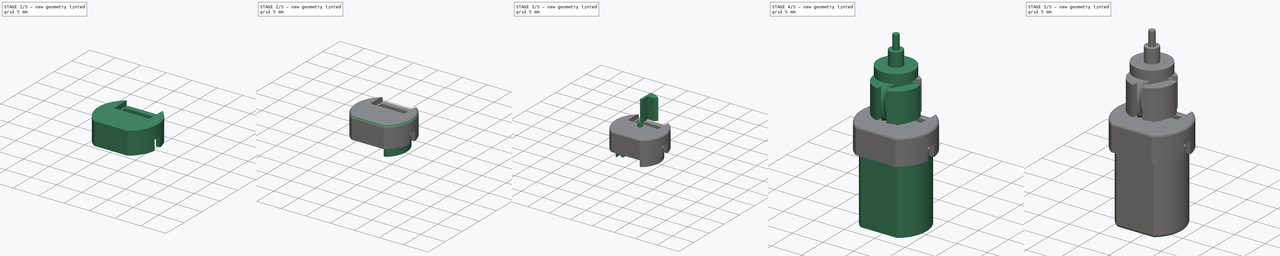
[diagram: build sequence overview — one tinted view per stage of 5, left to right]
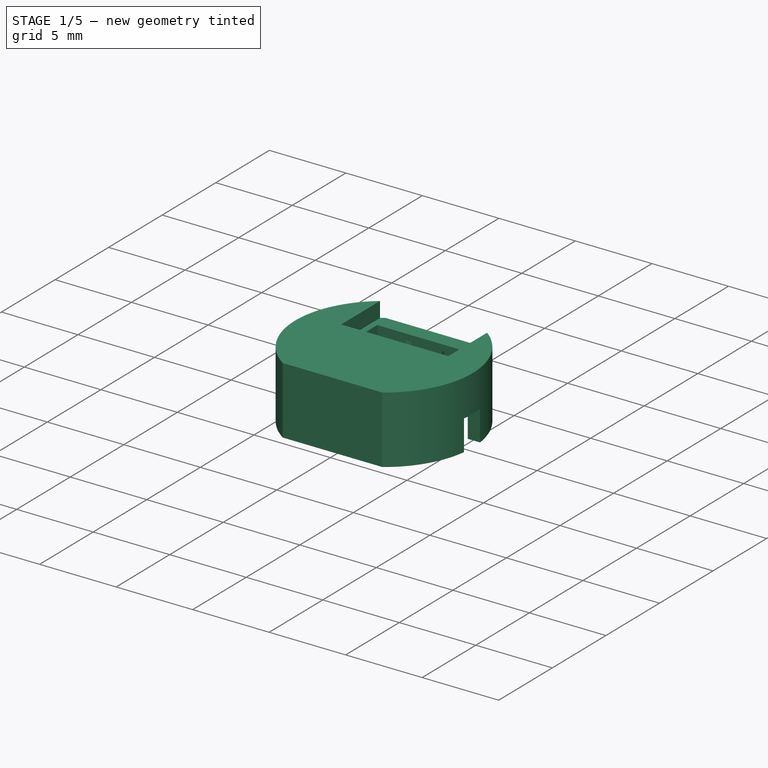
[diagram: stage 1 of 5 — iso view after this stage's code; geometry added in this stage tinted green]
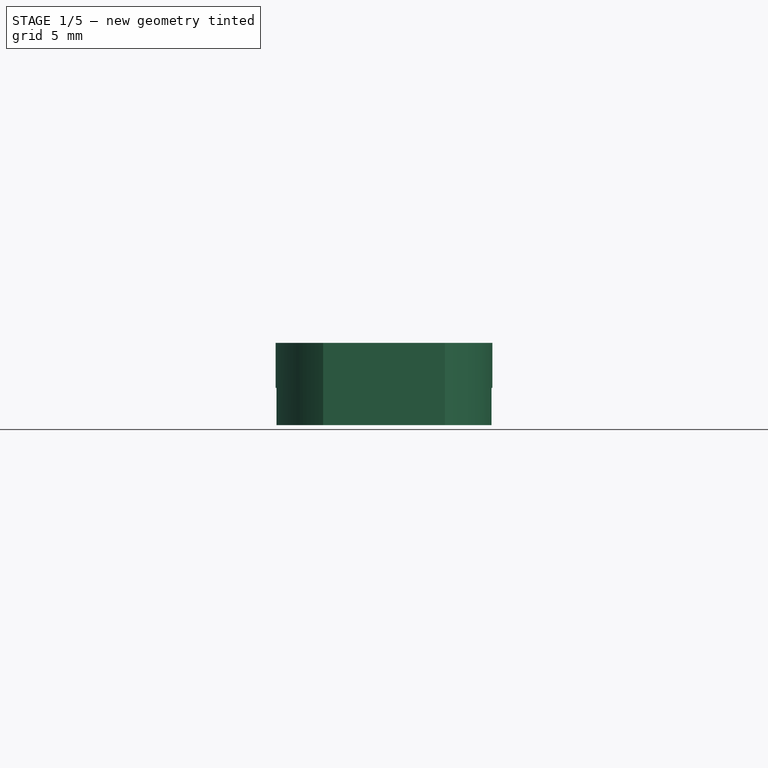
[diagram: stage 1 of 5 — front view after this stage's code; geometry added in this stage tinted green]
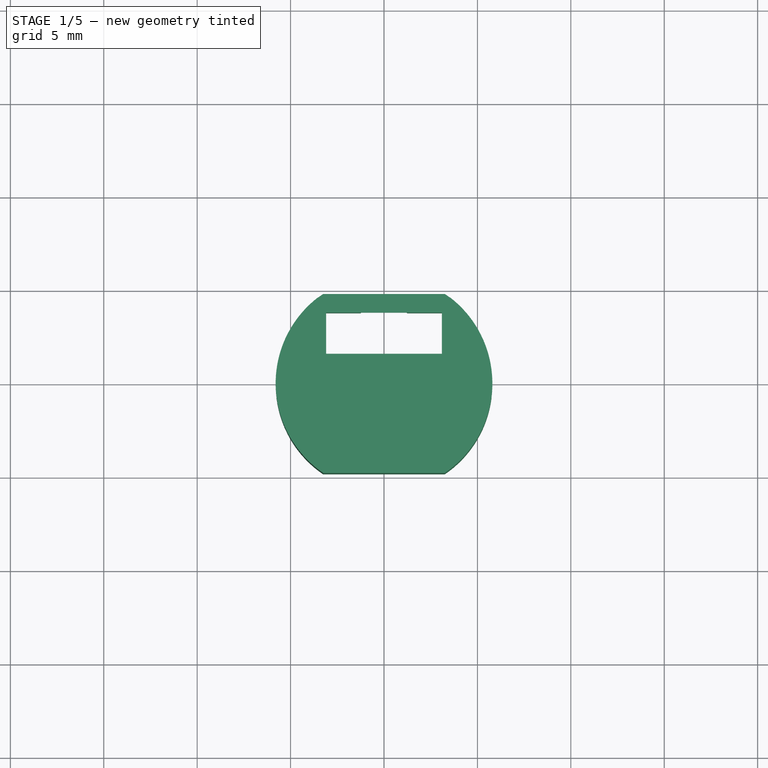
[diagram: stage 1 of 5 — top view after this stage's code; geometry added in this stage tinted green]
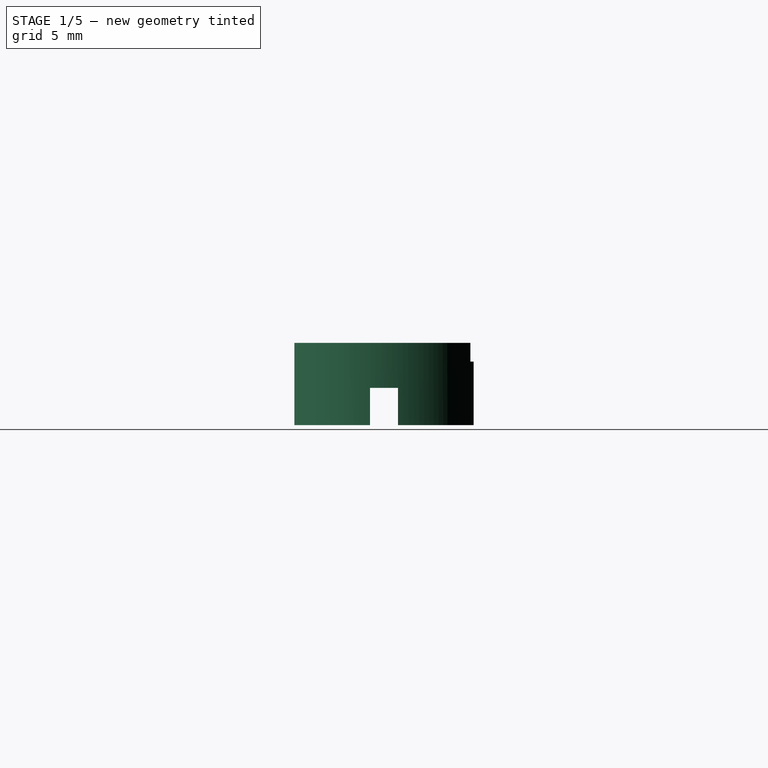
[diagram: stage 1 of 5 — right view after this stage's code; geometry added in this stage tinted green]
FCSTD DOCUMENT  (FreeCAD 0.19R22366 (Git))
Label: MicroServoAssembly
License: All rights reserved
LicenseURL: http://en.wikipedia.org/wiki/All_rights_reserved
objects: Sketcher::SketchObject×29, PartDesign::Pad×19, PartDesign::Pocket×9, PartDesign::Body×8, PartDesign::Mirrored×6, PartDesign::PolarPattern×4, PartDesign::Fillet×3, PartDesign::MultiTransform×3, PartDesign::Plane×1, PartDesign::FeatureBase×1
note: 114 computed .brp shape members not serialized (recipe doc carries the construction recipe); baked Part::Feature solids carry a one-line shape summary decoded from their .brp

FEATURE [PartDesign::Body] Body013  label="Body005"
  Group = -> [Sketch083,Pad040]
  Origin = -> Origin013
  Tip = -> Pad040
FEATURE [Sketcher::SketchObject] Sketch088
  MapMode = 5
  Support = -> [XY_Plane015]
  sketch-geometry (5):
    g0: LineSegment StartX=-5.98925 StartY=0.75 StartZ=0 EndX=6.01075 EndY=0.75 EndZ=0
    g1: LineSegment StartX=6.01075 StartY=-0.75 StartZ=0 EndX=-5.98925 EndY=-0.75 EndZ=0
    g2: LineSegment StartX=-5.98925 StartY=-0.75 StartZ=0 EndX=-5.98925 EndY=0.75 EndZ=0
    g3: LineSegment StartX=6.01075 StartY=0.75 StartZ=0 EndX=6.01075 EndY=0 EndZ=0
    g4: LineSegment StartX=6.01075 StartY=-0.75 StartZ=0 EndX=6.01075 EndY=0 EndZ=0
  constraints (14):
    c: Coincident(g1,g2)
    c: Coincident(g2,g0)
    c: Horizontal(g0)
    c: Horizontal(g1)
    c: Vertical(g2)
    c: Coincident(g3,g0)
    c: PointOnObject(g3,g-1)
    c: Vertical(g3)
    c: Coincident(g4,g1)
    c: Coincident(g4,g3)
    c: Vertical(g4)
    c: Equal(g4,g3)
    c: Distance(g0) = 12
    c: Distance(g2) = 1.5
FEATURE [PartDesign::PolarPattern] PolarPattern007
  Angle = 360
  Axis = -> Z_Axis015
  Occurrences = 2
FEATURE [PartDesign::Mirrored] Mirrored011
  MirrorPlane = -> YZ_Plane015
FEATURE [Sketcher::SketchObject] Sketch091
  MapMode = 5
  Support = -> [XY_Plane015]
  sketch-geometry (8):
    g0: ArcOfCircle CenterX=0 CenterY=0 CenterZ=0 NormalX=0 NormalY=0 NormalZ=1 AngleXU=0 Radius=5 StartAngle=5.35589 EndAngle=7.21048
    g1: ArcOfCircle CenterX=0 CenterY=0 CenterZ=0 NormalX=0 NormalY=0 NormalZ=1 AngleXU=0 Radius=5 StartAngle=2.2143 EndAngle=4.06889
    g2: LineSegment StartX=-3 StartY=-4 StartZ=0 EndX=3 EndY=-4 EndZ=0
    g3: LineSegment StartX=-3 StartY=4 StartZ=0 EndX=3 EndY=4 EndZ=0
    g4: ArcOfCircle CenterX=0 CenterY=0 CenterZ=0 NormalX=0 NormalY=0 NormalZ=1 AngleXU=0 Radius=5.8 StartAngle=2.1668 EndAngle=4.11639
    g5: ArcOfCircle CenterX=0 CenterY=0 CenterZ=0 NormalX=0 NormalY=0 NormalZ=1 AngleXU=0 Radius=5.8 StartAngle=5.30839 EndAngle=7.25798
    g6: LineSegment StartX=-3.25576 StartY=-4.8 StartZ=0 EndX=3.25576 EndY=-4.8 EndZ=0
    g7: LineSegment StartX=-3.25576 StartY=4.8 StartZ=0 EndX=3.25576 EndY=4.8 EndZ=0
  constraints (24):
    c: Coincident(g0,g-1)
    c: Coincident(g1,g0)
    c: Coincident(g2,g1)
    c: Coincident(g2,g0)
    c: Horizontal(g2)
    c: Coincident(g3,g1)
    c: Coincident(g3,g0)
    c: Horizontal(g3)
    c: Equal(g0,g1)
    c: Radius(g0) = 5
    c: Equal(g3,g2)
    c: DistanceY(g0,g0) = 8
    c: Coincident(g4,g0)
    c: Coincident(g5,g0)
    c: Coincident(g6,g4)
    c: Coincident(g6,g5)
    c: Horizontal(g6)
    c: Coincident(g7,g4)
    c: Coincident(g7,g5)
    c: Horizontal(g7)
    c: Equal(g4,g5)
    c: Equal(g6,g7)
    c: Radius(g4) = 5.8
    c: DistanceY(g4,g1) = 0.8
FEATURE [PartDesign::Pad] Pad046
  Length = 3.4
  Length2 = 100
  Profile = -> Sketch091
  Type = 0
FEATURE [Sketcher::SketchObject] Sketch090
  ExternalGeometry = -> [Pad046]
  MapMode = 5
  Placement = pos=(0,0,3.4) rot=(0,0,1;0rad)
  Support = -> [Pad046]
  sketch-geometry (3):
    g0: ArcOfCircle CenterX=0 CenterY=0 CenterZ=0 NormalX=0 NormalY=0 NormalZ=1 AngleXU=0 Radius=5 StartAngle=2.2143 EndAngle=2.94023
    g1: LineSegment StartX=-3 StartY=4 StartZ=0 EndX=-1 EndY=4 EndZ=0
    g2: LineSegment StartX=-4.89898 StartY=1 StartZ=0 EndX=-1 EndY=4 EndZ=0
  constraints (8):
    c: Coincident(g0,g-1)
    c: Coincident(g0,g-6)
    c: Coincident(g1,g0)
    c: PointOnObject(g1,g-3)
    c: Coincident(g2,g0)
    c: Coincident(g2,g1)
    c: Distance(g1) = 2
    c: DistanceY(g0,g0) = 1
FEATURE [PartDesign::Pad] Pad045
  BaseFeature = -> Pad046
  Length = 2.4
  Length2 = 100
  Profile = -> Sketch090
  Reversed = true
  Type = 0
FEATURE [PartDesign::MultiTransform] MultiTransform009
  BaseFeature = -> Pad045
  Originals = -> [Pad045]
  Transformations = -> [PolarPattern007,Mirrored011]
FEATURE [Sketcher::SketchObject] Sketch092
  ExternalGeometry = -> [MultiTransform009]
  MapMode = 5
  Placement = pos=(0,0,3.4) rot=(0,0,1;0rad)
  Support = -> [MultiTransform009]
  sketch-geometry (4):
    g0: LineSegment StartX=3 StartY=-4 StartZ=0 EndX=-3 EndY=-4 EndZ=0
    g1: LineSegment StartX=-3 StartY=4 StartZ=0 EndX=3 EndY=4 EndZ=0
    g2: ArcOfCircle CenterX=0 CenterY=0 CenterZ=0 NormalX=0 NormalY=0 NormalZ=1 AngleXU=0 Radius=5 StartAngle=5.35589 EndAngle=7.21048
    g3: ArcOfCircle CenterX=0 CenterY=0 CenterZ=0 NormalX=0 NormalY=0 NormalZ=1 AngleXU=0 Radius=5 StartAngle=2.2143 EndAngle=4.06889
  constraints (10):
    c: Coincident(g0,g-4)
    c: Horizontal(g0)
    c: Coincident(g1,g-3)
    c: Horizontal(g1)
    c: Coincident(g2,g-1)
    c: Coincident(g2,g1)
    c: Coincident(g2,g0)
    c: Coincident(g3,g2)
    c: Coincident(g3,g1)
    c: Coincident(g3,g0)
FEATURE [PartDesign::Pad] Pad047
  BaseFeature = -> MultiTransform009
  Length = 0.4
  Length2 = 100
  Profile = -> Sketch092
  Reversed = true
  Type = 0
FEATURE [Sketcher::SketchObject] Sketch086
  MapMode = 5
  Placement = pos=(0,0,3.4) rot=(0,0,1;0rad)
  Support = -> [Pad047]
  sketch-geometry (5):
    g0: LineSegment StartX=-3.1 StartY=3.8 StartZ=0 EndX=3.1 EndY=3.8 EndZ=0
    g1: LineSegment StartX=3.1 StartY=3.8 StartZ=0 EndX=3.1 EndY=1.6 EndZ=0
    g2: LineSegment StartX=-3.1 StartY=1.6 StartZ=0 EndX=-3.1 EndY=3.8 EndZ=0
    g3: LineSegment StartX=-3.1 StartY=1.6 StartZ=0 EndX=0 EndY=1.6 EndZ=0
    g4: LineSegment StartX=3.1 StartY=1.6 StartZ=0 EndX=0 EndY=1.6 EndZ=0
  constraints (15):
    c: Coincident(g0,g1)
    c: Coincident(g2,g0)
    c: Horizontal(g0)
    c: Vertical(g1)
    c: Vertical(g2)
    c: Coincident(g3,g2)
    c: PointOnObject(g3,g-2)
    c: Horizontal(g3)
    c: Coincident(g4,g1)
    c: Coincident(g4,g3)
    c: Horizontal(g4)
    c: Equal(g4,g3)
    c: Distance(g0) = 6.2
    c: Distance(g1) = 2.2
    c: DistanceY(g-1,g1) = 1.6
FEATURE [PartDesign::Pocket] Pocket042
  BaseFeature = -> Pad047
  Length = 5
  Length2 = 100
  Profile = -> Sketch086
  Type = 1
FEATURE [Sketcher::SketchObject] Sketch087
  ExternalGeometry = -> [Pocket042]
  MapMode = 5
  Placement = pos=(0,0,3.4) rot=(0,0,1;0rad)
  Support = -> [Pocket042]
  sketch-geometry (4):
    g0: ArcOfCircle CenterX=0 CenterY=0 CenterZ=0 NormalX=0 NormalY=0 NormalZ=1 AngleXU=0 Radius=5.8 StartAngle=5.30839 EndAngle=7.25798
    g1: ArcOfCircle CenterX=0 CenterY=0 CenterZ=0 NormalX=0 NormalY=0 NormalZ=1 AngleXU=0 Radius=5.8 StartAngle=2.1668 EndAngle=4.11639
    g2: LineSegment StartX=-3.25576 StartY=4.8 StartZ=0 EndX=3.25576 EndY=4.8 EndZ=0
    g3: LineSegment StartX=-3.25576 StartY=-4.8 StartZ=0 EndX=3.25576 EndY=-4.8 EndZ=0
  constraints (10):
    c: Coincident(g0,g-1)
    c: Coincident(g0,g-4)
    c: Coincident(g1,g0)
    c: Coincident(g1,g-3)
    c: Coincident(g2,g1)
    c: Coincident(g2,g0)
    c: Horizontal(g2)
    c: Coincident(g3,g1)
    c: Coincident(g3,g0)
    c: Horizontal(g3)
FEATURE [PartDesign::Pad] Pad044
  BaseFeature = -> Pocket042
  Length = 1
  Length2 = 100
  Profile = -> Sketch087
  Type = 0
FEATURE [Sketcher::SketchObject] Sketch089
  MapMode = 5
  Placement = pos=(0,0,4.4) rot=(0,0,1;0rad)
  Support = -> [Pad044]
  sketch-geometry (5):
    g0: LineSegment StartX=3.5 StartY=6 StartZ=0 EndX=3.5 EndY=1 EndZ=0
    g1: LineSegment StartX=3.5 StartY=1 StartZ=0 EndX=-3.5 EndY=1 EndZ=0
    g2: LineSegment StartX=-3.5 StartY=1 StartZ=0 EndX=-3.5 EndY=6 EndZ=0
    g3: LineSegment StartX=-3.5 StartY=6 StartZ=0 EndX=0 EndY=6 EndZ=0
    g4: LineSegment StartX=3.5 StartY=6 StartZ=0 EndX=0 EndY=6 EndZ=0
  constraints (15):
    c: Coincident(g0,g1)
    c: Coincident(g1,g2)
    c: Horizontal(g1)
    c: Vertical(g0)
    c: Vertical(g2)
    c: Coincident(g3,g2)
    c: PointOnObject(g3,g-2)
    c: Horizontal(g3)
    c: Coincident(g4,g0)
    c: Coincident(g4,g3)
    c: Horizontal(g4)
    c: Equal(g3,g4)
    c: DistanceY(g-1,g0) = 1
    c: Distance(g1) = 7
    c: Distance(g2) = 5
FEATURE [PartDesign::Pocket] Pocket043
  BaseFeature = -> Pad044
  Length = 1
  Length2 = 100
  Profile = -> Sketch089
  Type = 0
FEATURE [PartDesign::Pocket] Pocket044
  BaseFeature = -> Pocket043
  Length = 1.99
  Length2 = 100
  Profile = -> Sketch088
  Reversed = true
  Type = 0
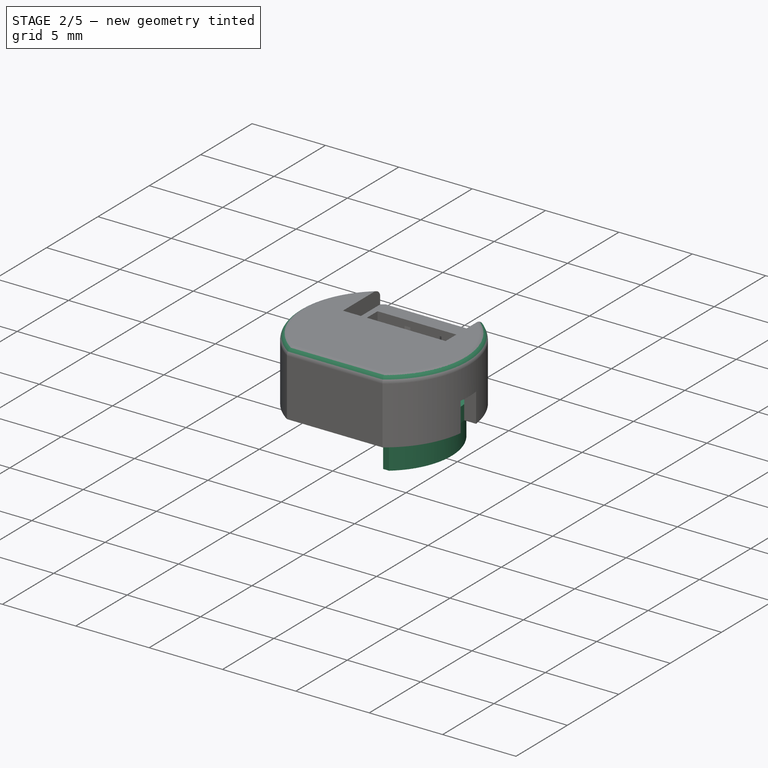
[diagram: stage 2 of 5 — iso view after this stage's code; geometry added in this stage tinted green]
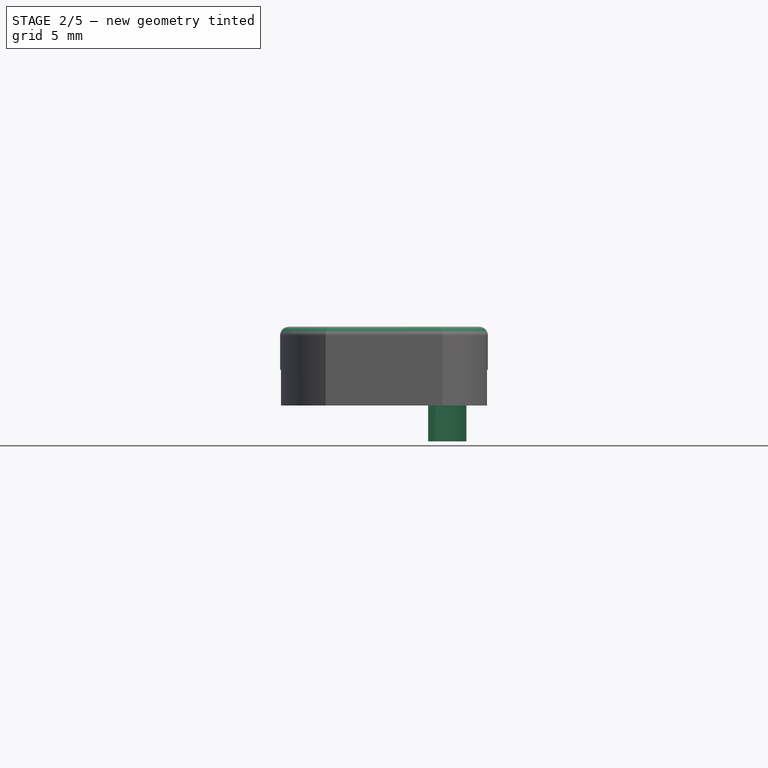
[diagram: stage 2 of 5 — front view after this stage's code; geometry added in this stage tinted green]
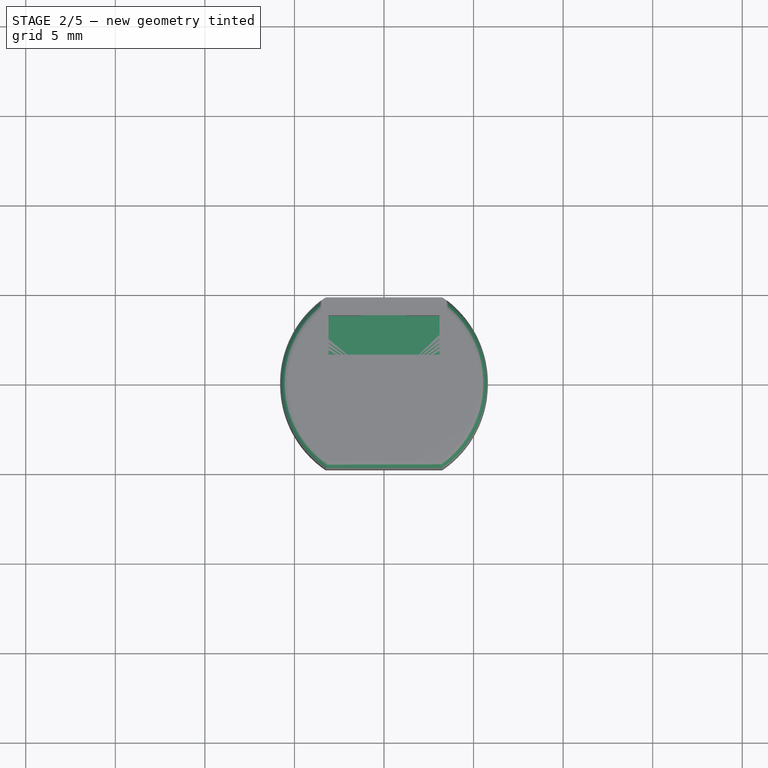
[diagram: stage 2 of 5 — top view after this stage's code; geometry added in this stage tinted green]
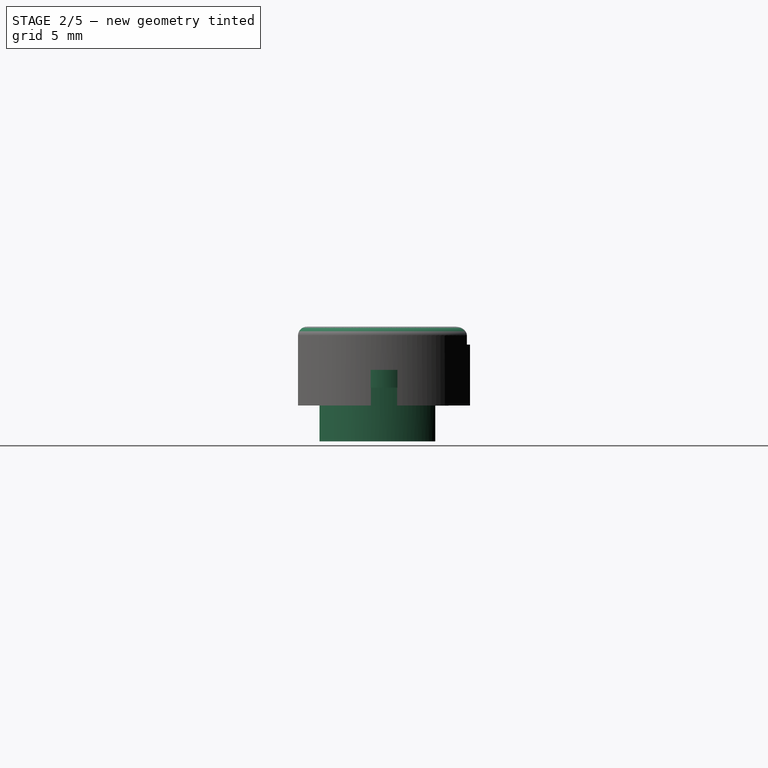
[diagram: stage 2 of 5 — right view after this stage's code; geometry added in this stage tinted green]
FEATURE [PartDesign::Body] Body001
  Group = -> [Sketch005,Pad004,Sketch006,Pad005,MultiTransform,Mirrored003,PolarPattern,Sketch007,Pad006,PolarPattern001,DatumPlane,Sketch008,Pad007,Sketch009,Pad008,Sketch010,Pad009]
  Origin = -> Origin001
  Placement = pos=(0,0,-14.8) rot=(0,0,1;0rad)
  Tip = -> Pad009
FEATURE [Sketcher::SketchObject] Sketch011
  MapMode = 5
  Support = -> [XY_Plane002]
  sketch-geometry (4):
    g0: ArcOfCircle CenterX=0 CenterY=0 CenterZ=0 NormalX=0 NormalY=0 NormalZ=1 AngleXU=0 Radius=5 StartAngle=5.35589 EndAngle=7.21048
    g1: LineSegment StartX=3 StartY=4 StartZ=0 EndX=0 EndY=4 EndZ=0
    g2: LineSegment StartX=0 StartY=4 StartZ=0 EndX=0 EndY=-4 EndZ=0
    g3: LineSegment StartX=0 StartY=-4 StartZ=0 EndX=3 EndY=-4 EndZ=0
  constraints (12):
    c: Coincident(g0,g-1)
    c: Radius(g0) = 5
    c: Coincident(g1,g0)
    c: PointOnObject(g1,g-2)
    c: Horizontal(g1)
    c: Coincident(g2,g1)
    c: PointOnObject(g2,g-2)
    c: Coincident(g3,g2)
    c: Coincident(g3,g0)
    c: Horizontal(g3)
    c: Distance(g2) = 8
    c: Equal(g1,g3)
FEATURE [PartDesign::Pad] Pad010
  Length = 1
  Length2 = 100
  Profile = -> Sketch011
  Type = 0
FEATURE [PartDesign::Mirrored] Mirrored004
  BaseFeature = -> Pad010
  MirrorPlane = -> Sketch011 [V_Axis]
  Originals = -> [Pad010]
FEATURE [Sketcher::SketchObject] Sketch012
  MapMode = 5
  Placement = pos=(0,0,1) rot=(0,0,1;0rad)
  Support = -> [Mirrored004]
  sketch-geometry (1):
    g0: Circle CenterX=0 CenterY=0 CenterZ=0 NormalX=0 NormalY=0 NormalZ=1 AngleXU=0 Radius=2
  constraints (2):
    c: Coincident(g0,g-1)
    c: Radius(g0) = 2
FEATURE [PartDesign::Pad] Pad011
  BaseFeature = -> Mirrored004
  Length = 1
  Length2 = 100
  Profile = -> Sketch012
  Type = 0
FEATURE [Sketcher::SketchObject] Sketch013
  MapMode = 5
  Placement = pos=(0,0,0) rot=(1,0,0;3.14159rad)
  Support = -> [Pad011]
  sketch-geometry (1):
    g0: Circle CenterX=0 CenterY=0 CenterZ=0 NormalX=0 NormalY=0 NormalZ=1 AngleXU=0 Radius=0.6
  constraints (2):
    c: Coincident(g0,g-1)
    c: Radius(g0) = 0.6
FEATURE [PartDesign::Pocket] Pocket001
  BaseFeature = -> Pad011
  Length = 5
  Length2 = 100
  Profile = -> Sketch013
  Type = 1
FEATURE [Sketcher::SketchObject] Sketch014
  ExternalGeometry = -> [Pocket001]
  MapMode = 5
  Placement = pos=(0,0,0) rot=(1,0,0;3.14159rad)
  Support = -> [Pocket001]
  expr: Constraints[2] = 5 - 0.4
  sketch-geometry (4):
    g0: ArcOfCircle CenterX=0 CenterY=0 CenterZ=0 NormalX=0 NormalY=0 NormalZ=1 AngleXU=0 Radius=4.6 StartAngle=5.38434 EndAngle=7.18203
    g1: LineSegment StartX=2.86356 StartY=3.6 StartZ=0 EndX=2.46356 EndY=3.6 EndZ=0
    g2: LineSegment StartX=2.46356 StartY=3.6 StartZ=0 EndX=2.46356 EndY=-3.6 EndZ=0
    g3: LineSegment StartX=2.86356 StartY=-3.6 StartZ=0 EndX=2.46356 EndY=-3.6 EndZ=0
  constraints (12):
    c: Coincident(g0,g-1)
    c: Vertical(g0,g0)
    c: Radius(g0) = 4.6
    c: DistanceY(g0,g-3) = 0.4
    c: Coincident(g1,g0)
    c: Coincident(g2,g1)
    c: Vertical(g2)
    c: Coincident(g3,g0)
    c: Coincident(g3,g2)
    c: Horizontal(g3)
    c: Horizontal(g1)
    c: Distance(g1) = 0.4
FEATURE [PartDesign::Pad] Pad012
  BaseFeature = -> Pocket001
  Length = 2
  Length2 = 100
  Profile = -> Sketch014
  Type = 0
FEATURE [Sketcher::SketchObject] Sketch015
  MapMode = 5
  Placement = pos=(0,0,-2) rot=(1,0,0;3.14159rad)
  Support = -> [Pad012]
  expr: Constraints[11] = 5 - 0.4 - 1
  sketch-geometry (8):
    g0: LineSegment StartX=3.1 StartY=2 StartZ=0 EndX=3.6 EndY=2 EndZ=0
    g1: LineSegment StartX=3.6 StartY=2 StartZ=0 EndX=3.6 EndY=-2 EndZ=0
    g2: LineSegment [constr] StartX=3.6 StartY=-2 StartZ=0 EndX=3.1 EndY=-2 EndZ=0
    g3: LineSegment StartX=3.1 StartY=-2 StartZ=0 EndX=3.1 EndY=2 EndZ=0
    g4: LineSegment StartX=3.6 StartY=-2 StartZ=0 EndX=3.6 EndY=-4.12277 EndZ=0
    g5: LineSegment StartX=3.1 StartY=-2 StartZ=0 EndX=2.06757 EndY=-2 EndZ=0
    g6: LineSegment StartX=2.06757 StartY=-2 StartZ=0 EndX=2.06757 EndY=-4.12277 EndZ=0
    g7: LineSegment StartX=2.06757 StartY=-4.12277 StartZ=0 EndX=3.6 EndY=-4.12277 EndZ=0
  constraints (21):
    c: Coincident(g0,g1)
    c: Coincident(g1,g2)
    c: Coincident(g2,g3)
    c: Coincident(g3,g0)
    c: Horizontal(g0)
    c: Horizontal(g2)
    c: Vertical(g1)
    c: Vertical(g3)
    c: Distance(g0) = 0.5
    c: Distance(g1) = 4
    c: DistanceY(g-1,g0) = 2
    c: DistanceX(g0) = 3.6
    c: Coincident(g4,g1)
    c: Vertical(g4)
    c: Coincident(g5,g3)
    c: Horizontal(g5)
    c: Coincident(g6,g5)
    c: Vertical(g6)
    c: Coincident(g7,g6)
    c: Coincident(g7,g4)
    c: Horizontal(g7)
FEATURE [PartDesign::Pocket] Pocket002
  BaseFeature = -> Pad012
  Length = 1.99
  Length2 = 100
  Profile = -> Sketch015
  Type = 0
FEATURE [PartDesign::Body] Body002
  Group = -> [Sketch011,Pad010,Mirrored004,Sketch012,Pad011,Sketch013,Pocket001,Sketch014,Pad012,Sketch015,Pocket002,Sketch016,Pocket003,MultiTransform001,PolarPattern002,Sketch073,Pocket037,Sketch074,Pocket038]
  Origin = -> Origin002
  Tip = -> Pocket038
FEATURE [Sketcher::SketchObject] Sketch083
  MapMode = 5
  Support = -> [XY_Plane013]
  sketch-geometry (2):
    g0: Circle CenterX=0 CenterY=0 CenterZ=0 NormalX=0 NormalY=0 NormalZ=1 AngleXU=0 Radius=1.5
    g1: Circle CenterX=0 CenterY=0 CenterZ=0 NormalX=0 NormalY=0 NormalZ=1 AngleXU=0 Radius=0.5
  constraints (4):
    c: Coincident(g0,g-1)
    c: Radius(g0) = 1.5
    c: Coincident(g1,g0)
    c: Radius(g1) = 0.5
FEATURE [PartDesign::Pad] Pad040
  Length = 1
  Length2 = 100
  Profile = -> Sketch083
  Type = 0
FEATURE [PartDesign::Fillet] Fillet003
  Base = -> Pocket044 [Edge83,Edge87,Edge32]
  BaseFeature = -> Pocket044
  Radius = 0.5
  SupportTransform = true
FEATURE [PartDesign::Body] Body015  label="sensorMount"
  Group = -> [Sketch091,Pad046,Sketch090,Pad045,MultiTransform009,PolarPattern007,Mirrored011,Sketch092,Pad047,Sketch086,Pocket042,Sketch087,Pad044,Sketch089,Pocket043,Sketch088,Pocket044,Fillet003]
  Origin = -> Origin015
  Tip = -> Fillet003
FEATURE [Sketcher::SketchObject] Sketch093
  MapMode = 5
  Support = -> [XY_Plane014]
  sketch-geometry (3):
    g0: Circle CenterX=0.6 CenterY=0 CenterZ=0 NormalX=0 NormalY=0 NormalZ=1 AngleXU=0 Radius=2.5
    g1: Circle CenterX=0 CenterY=0 CenterZ=0 NormalX=0 NormalY=0 NormalZ=1 AngleXU=0 Radius=0.5
    g2: GeomPoint X=-1.9 Y=0 Z=0
  constraints (8):
    c: PointOnObject(g0,g-1)
    c: Coincident(g1,g-1)
    c: Radius(g1) = 0.5
    c: Diameter(g0) = 5
    c: PointOnObject(g2,g0)
    c: PointOnObject(g2,g-1)
    c: Distance(g0,g1) = 0.6
    c: Distance(g1,g2) = 1.9
FEATURE [PartDesign::Body] Body014  label="encoderDisc"
  Group = -> [Sketch093]
  Origin = -> Origin014
  Placement = pos=(0,0,1.9) rot=(0,0,1;0rad)
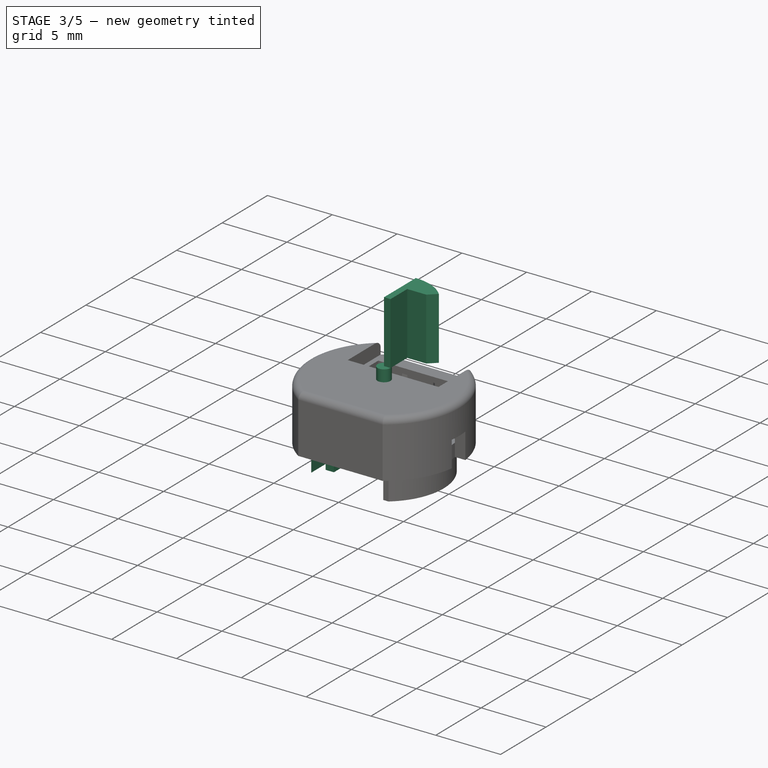
[diagram: stage 3 of 5 — iso view after this stage's code; geometry added in this stage tinted green]
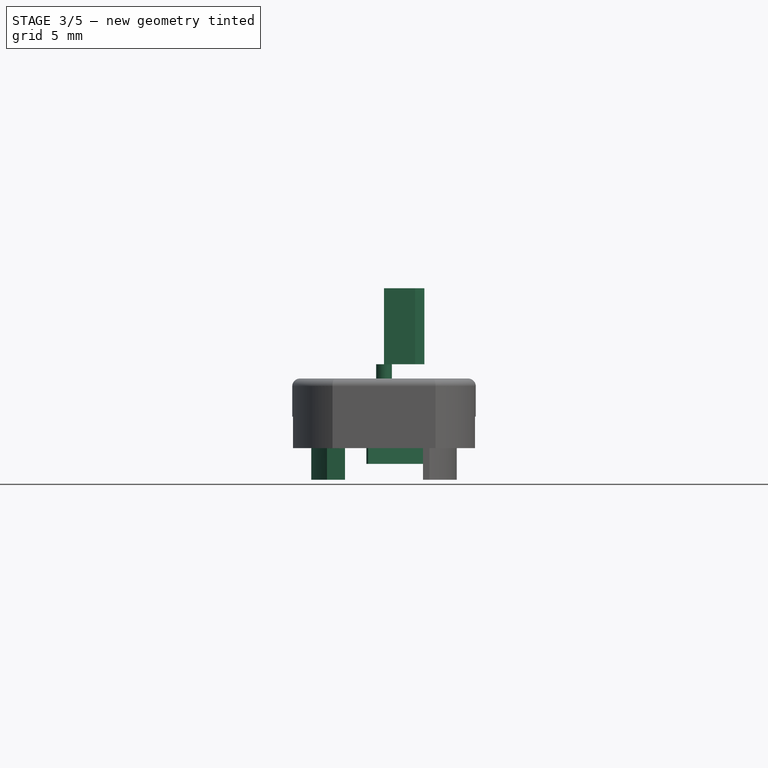
[diagram: stage 3 of 5 — front view after this stage's code; geometry added in this stage tinted green]
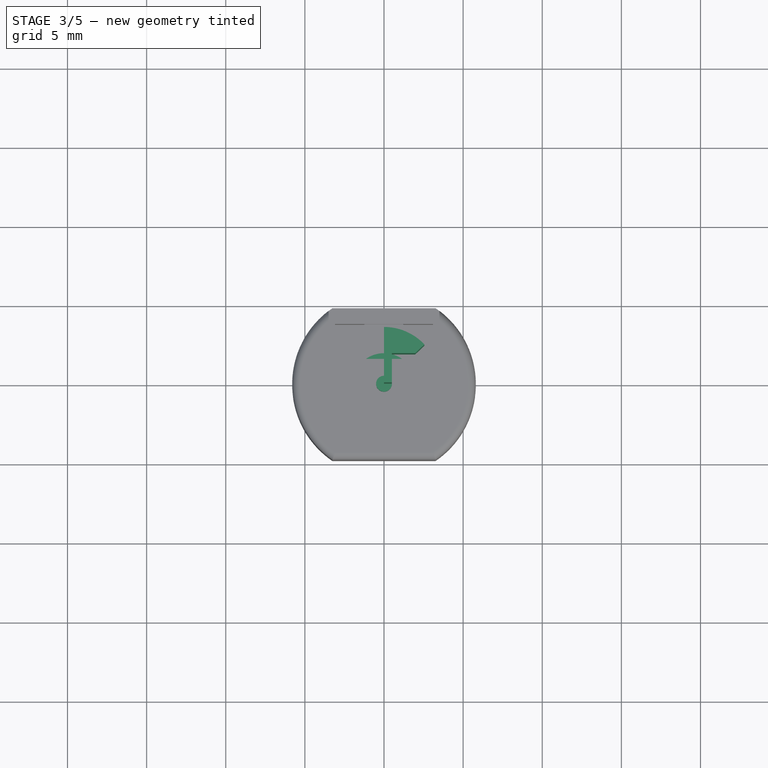
[diagram: stage 3 of 5 — top view after this stage's code; geometry added in this stage tinted green]
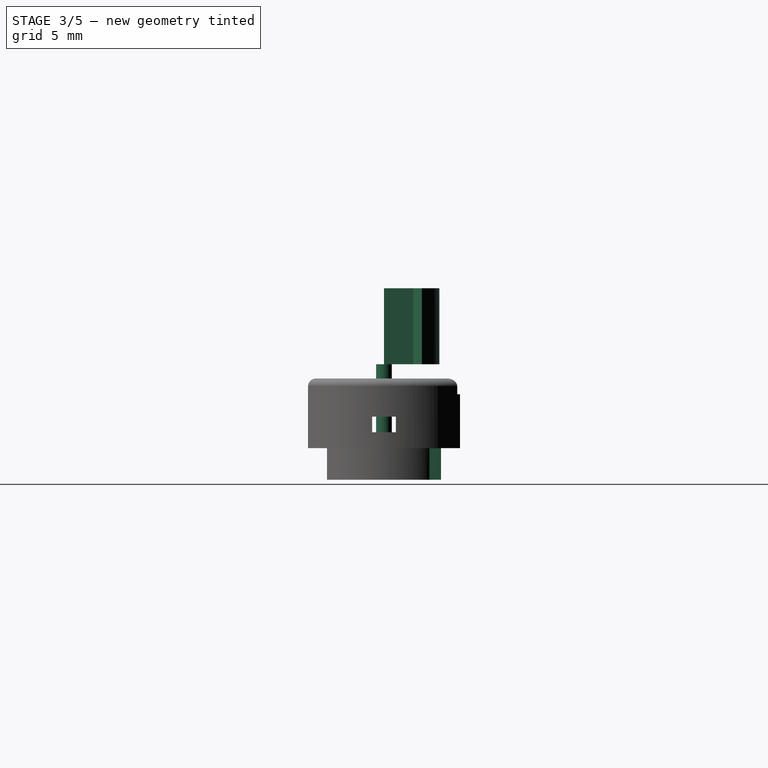
[diagram: stage 3 of 5 — right view after this stage's code; geometry added in this stage tinted green]
FEATURE [PartDesign::Body] Body
  Group = -> [Sketch,Pad,Mirrored,Sketch001,Pad001,Fillet,Fillet001,Sketch002,Pad002,Sketch003,Pocket,Mirrored001,Sketch004,Pad003,Mirrored002]
  Origin = -> Origin
  Tip = -> Mirrored002
FEATURE [Sketcher::SketchObject] Sketch005
  MapMode = 5
  Support = -> [XY_Plane001]
  sketch-geometry (1):
    g0: Circle CenterX=0 CenterY=0 CenterZ=0 NormalX=0 NormalY=0 NormalZ=1 AngleXU=0 Radius=0.5
  constraints (2):
    c: Coincident(g0,g-1)
    c: Radius(g0) = 0.5
FEATURE [PartDesign::Pad] Pad004
  Length = 5.3
  Length2 = 100
  Profile = -> Sketch005
  Type = 0
FEATURE [Sketcher::SketchObject] Sketch006
  MapMode = 5
  Placement = pos=(0,0,5.3) rot=(0,0,1;0rad)
  Support = -> [Pad004]
  sketch-geometry (7):
    g0: LineSegment StartX=0 StartY=0 StartZ=0 EndX=2e-16 EndY=3.5 EndZ=0
    g1: ArcOfCircle [constr] CenterX=0 CenterY=0 CenterZ=0 NormalX=0 NormalY=0 NormalZ=1 AngleXU=0 Radius=3.5 StartAngle=0.523599 EndAngle=1.5708
    g2: LineSegment StartX=0.5 StartY=1.84569 StartZ=0 EndX=0.5 EndY=0 EndZ=0
    g3: LineSegment StartX=0 StartY=0 StartZ=0 EndX=0.5 EndY=0 EndZ=0
    g4: LineSegment StartX=0.5 StartY=1.84569 StartZ=0 EndX=1.97064 EndY=1.84569 EndZ=0
    g5: LineSegment StartX=2.55453 StartY=2.39257 StartZ=0 EndX=1.97064 EndY=1.84569 EndZ=0
    g6: ArcOfCircle CenterX=0 CenterY=0 CenterZ=0 NormalX=0 NormalY=0 NormalZ=1 AngleXU=0 Radius=3.5 StartAngle=0.752671 EndAngle=1.5708
  constraints (20):
    c: Coincident(g0,g-1)
    c: PointOnObject(g0,g-2)
    c: Coincident(g1,g0)
    c: Coincident(g1,g0)
    c: PointOnObject(g2,g-1)
    c: Vertical(g2)
    c: Coincident(g3,g0)
    c: Coincident(g3,g2)
    c: Radius(g1) = 3.5
    c: Coincident(g4,g2)
    c: Horizontal(g4)
    c: Angle(g1) = 1.0472
    c: Coincident(g5,g4)
    c: Perpendicular(g1,g5)
    c: Coincident(g6,g0)
    c: Coincident(g6,g0)
    c: Coincident(g6,g5)
    c: Distance(g5) = 0.8
    c: Distance(g5,g1) = 0.8
    c: Distance(g3) = 0.5
FEATURE [PartDesign::Pad] Pad005
  BaseFeature = -> Pad004
  Length = 4.8
  Length2 = 100
  Profile = -> Sketch006
  Type = 0
FEATURE [Sketcher::SketchObject] Sketch016
  ExternalGeometry = -> [Pocket002]
  MapMode = 5
  Placement = pos=(0,0,-0.01) rot=(1,0,0;3.14159rad)
  Support = -> [Pocket002]
  sketch-geometry (5):
    g0: LineSegment StartX=3.1 StartY=0.8 StartZ=0 EndX=3.6 EndY=0.8 EndZ=0
    g1: LineSegment StartX=3.6 StartY=-0.8 StartZ=0 EndX=3.1 EndY=-0.8 EndZ=0
    g2: LineSegment StartX=3.1 StartY=-0.8 StartZ=0 EndX=3.1 EndY=0.8 EndZ=0
    g3: LineSegment StartX=3.6 StartY=0.8 StartZ=0 EndX=3.6 EndY=0 EndZ=0
    g4: LineSegment StartX=3.6 StartY=0 StartZ=0 EndX=3.6 EndY=-0.8 EndZ=0
  constraints (15):
    c: Coincident(g1,g2)
    c: Coincident(g2,g0)
    c: Horizontal(g0)
    c: Horizontal(g1)
    c: Vertical(g2)
    c: PointOnObject(g0,g-4)
    c: PointOnObject(g1,g-3)
    c: Coincident(g3,g0)
    c: PointOnObject(g3,g-1)
    c: Vertical(g3)
    c: Coincident(g4,g3)
    c: Coincident(g4,g1)
    c: Vertical(g4)
    c: Equal(g3,g4)
    c: Distance(g2) = 1.6
FEATURE [PartDesign::Pocket] Pocket003
  BaseFeature = -> Pocket002
  Length = 5
  Length2 = 100
  Profile = -> Sketch016
  Type = 1
FEATURE [PartDesign::PolarPattern] PolarPattern002
  Angle = 360
  Axis = -> Z_Axis002
  Occurrences = 2
FEATURE [PartDesign::MultiTransform] MultiTransform001
  BaseFeature = -> Pocket003
  Originals = -> [Pad012,Pocket002,Pocket003]
  Transformations = -> [PolarPattern002]
FEATURE [Sketcher::SketchObject] Sketch017
  MapMode = 5
  Support = -> [XY_Plane003]
  sketch-geometry (14):
    g0: LineSegment StartX=3.29032 StartY=-1.35 StartZ=0 EndX=3.79032 EndY=-1.35 EndZ=0
    g1: LineSegment [constr] StartX=3.29032 StartY=-1.35 StartZ=0 EndX=3.29032 EndY=2.76363 EndZ=0
    g2: LineSegment [constr] StartX=3.29032 StartY=2.76363 StartZ=0 EndX=-1 EndY=-0.05 EndZ=0
    g3: LineSegment StartX=-1.10968 StartY=0.117243 StartZ=0 EndX=-1 EndY=-0.05 EndZ=0
    g4: ArcOfCircle CenterX=2.92206 CenterY=2.08174 CenterZ=0 NormalX=0 NormalY=0 NormalZ=1 AngleXU=0 Radius=0.368255 StartAngle=0 EndAngle=2.15124
    g5: ArcOfCircle CenterX=2.92206 CenterY=2.08174 CenterZ=0 NormalX=0 NormalY=0 NormalZ=1 AngleXU=0 Radius=0.568255 StartAngle=0 EndAngle=2.15124
    g6: LineSegment StartX=3.79032 StartY=-1.35 StartZ=0 EndX=3.79032 EndY=1.35 EndZ=0
    g7: LineSegment StartX=2.72011 StartY=2.38969 StartZ=0 EndX=-1 EndY=-0.05 EndZ=0
    g8: LineSegment StartX=-1.10968 StartY=0.117243 StartZ=0 EndX=2.61043 EndY=2.55693 EndZ=0
    g9: LineSegment StartX=3.49032 StartY=2.08174 StartZ=0 EndX=3.49032 EndY=1.35 EndZ=0
    g10: LineSegment StartX=3.79032 StartY=1.35 StartZ=0 EndX=3.49032 EndY=1.35 EndZ=0
    g11: LineSegment StartX=3.29032 StartY=2.08174 StartZ=0 EndX=3.29032 EndY=-1.35 EndZ=0
    g12: LineSegment [constr] StartX=2.92206 StartY=2.65 StartZ=0 EndX=3.79032 EndY=2.65 EndZ=0
    g13: LineSegment [constr] StartX=3.79032 StartY=2.65 StartZ=0 EndX=3.79032 EndY=-1.35 EndZ=0
  constraints (38):
    c: Horizontal(g0)
    c: Coincident(g1,g0)
    c: Vertical(g1)
    c: Coincident(g2,g1)
    c: Perpendicular(g3,g2)
    c: Distance(g3) = 0.2
    c: PointOnObject(g4,g2)
    c: PointOnObject(g4,g1)
    c: Coincident(g5,g4)
    c: Coincident(g6,g0)
    c: Vertical(g6)
    c: Coincident(g8,g3)
    c: Parallel(g8,g7)
    c: Distance(g5,g5) = 1
    c: Vertical(g9)
    c: Coincident(g10,g6)
    c: Coincident(g10,g9)
    c: Horizontal(g10)
    c: Coincident(g11,g0)
    c: Distance(g6) = 2.7
    c: DistanceY(g0,g-1) = 1.35
    c: PointOnObject(g12,g5)
    c: Tangent(g12,g5)
    c: Horizontal(g12)
    c: Coincident(g13,g12)
    c: Coincident(g13,g0)
    c: Vertical(g13)
    c: Distance(g13) = 4
    c: Distance(g0) = 0.5
    c: Coincident(g3,g2)
    c: Coincident(g3,g7)
    c: Tangent(g8,g5) = 1.5708
    c: Tangent(g7,g4) = -1.5708
    c: Tangent(g9,g5) = 1.5708
    c: DistanceX(g3,g0) = 4.9
    c: DistanceY(g0,g3) = 1.3
    c: Tangent(g11,g4) = 1.5708
    c: DistanceX(g3,g-1) = 1
FEATURE [PartDesign::Pad] Pad013
  Length = 1
  Length2 = 100
  Profile = -> Sketch017
  Reversed = true
  Type = 0
FEATURE [PartDesign::Body] Body003
  Group = -> [Sketch017,Pad013]
  Origin = -> Origin003
  Placement = pos=(0,0,-1) rot=(0,0,1;0rad)
  Tip = -> Pad013
FEATURE [PartDesign::FeatureBase] Clone
  BaseFeature = -> Body003
FEATURE [PartDesign::Body] Body004
  BaseFeature = -> Body003
  Group = -> [Clone]
  Origin = -> Origin004
  Placement = pos=(0,0,-1) rot=(0,0,1;3.14159rad)
  Tip = -> Clone
FEATURE [Sketcher::SketchObject] Sketch073
  MapMode = 5
  Placement = pos=(0,0,0) rot=(1,0,0;3.14159rad)
  Support = -> [MultiTransform001]
  sketch-geometry (1):
    g0: Circle CenterX=0 CenterY=0 CenterZ=0 NormalX=0 NormalY=0 NormalZ=1 AngleXU=0 Radius=1.5
  constraints (2):
    c: Coincident(g0,g-1)
    c: Radius(g0) = 1.5
FEATURE [PartDesign::Pocket] Pocket037
  BaseFeature = -> MultiTransform001
  Length = 1
  Length2 = 100
  Profile = -> Sketch073
  Type = 0
FEATURE [Sketcher::SketchObject] Sketch074
  ExternalGeometry = -> [Pocket037]
  MapMode = 5
  Placement = pos=(0,0,2) rot=(0,0,1;0rad)
  Support = -> [Pocket037]
  sketch-geometry (1):
    g0: Circle CenterX=0 CenterY=0 CenterZ=0 NormalX=0 NormalY=0 NormalZ=1 AngleXU=0 Radius=2
  constraints (2):
    c: Coincident(g0,g-1)
    c: Equal(g-3,g0)
FEATURE [PartDesign::Pocket] Pocket038
  BaseFeature = -> Pocket037
  Length = 1
  Length2 = 100
  Profile = -> Sketch074
  Type = 0
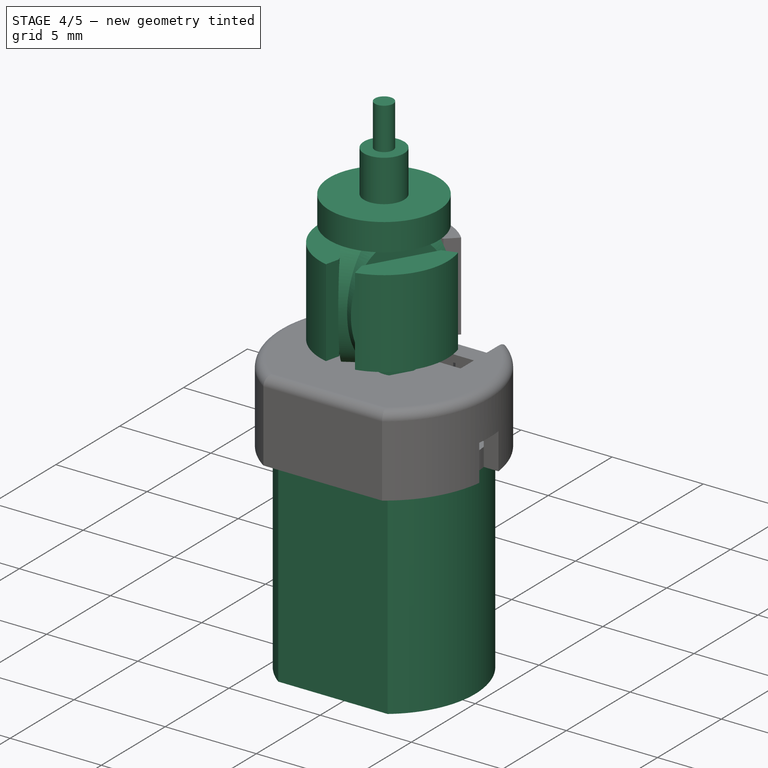
[diagram: stage 4 of 5 — iso view after this stage's code; geometry added in this stage tinted green]
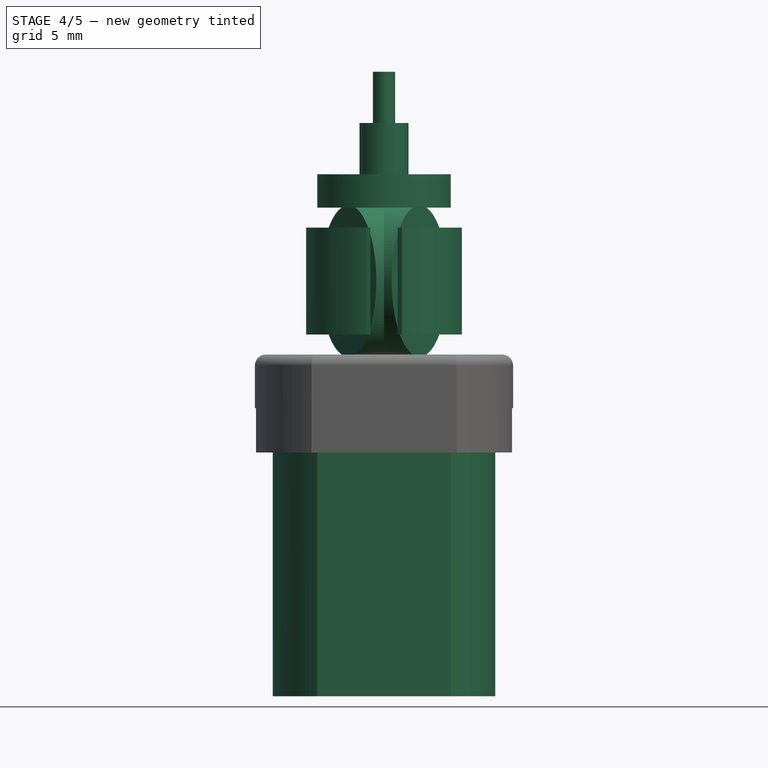
[diagram: stage 4 of 5 — front view after this stage's code; geometry added in this stage tinted green]
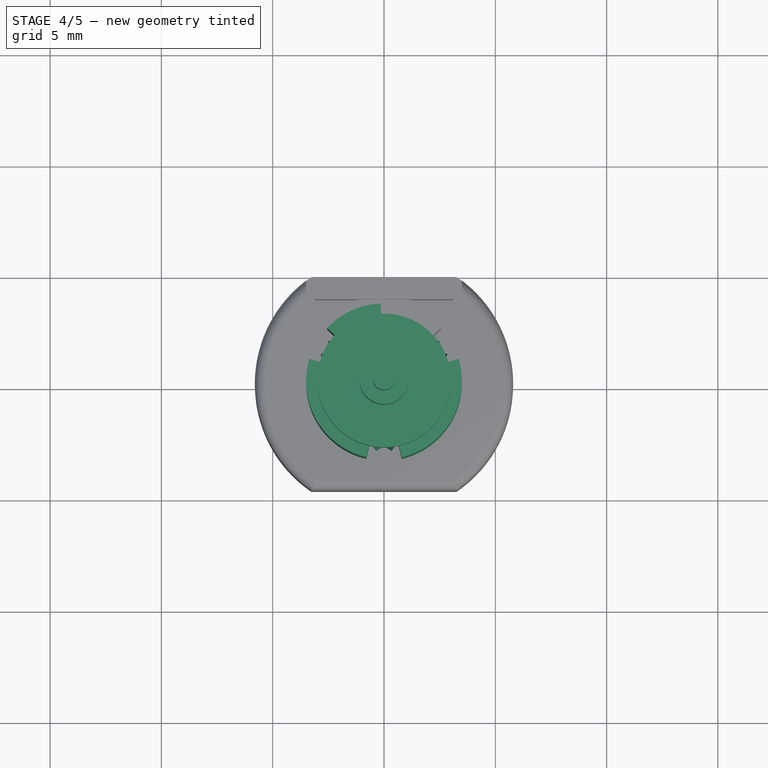
[diagram: stage 4 of 5 — top view after this stage's code; geometry added in this stage tinted green]
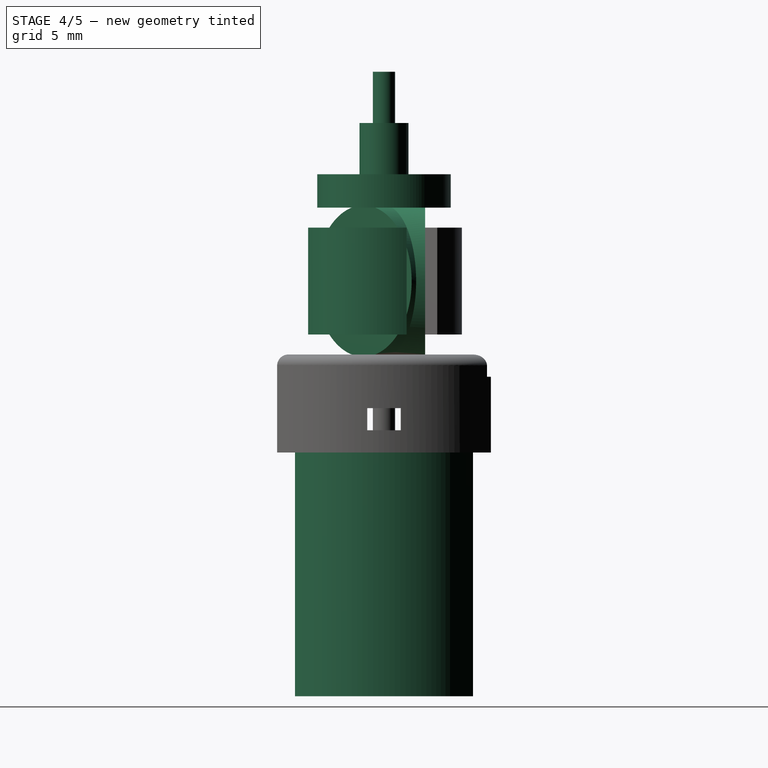
[diagram: stage 4 of 5 — right view after this stage's code; geometry added in this stage tinted green]
FEATURE [Sketcher::SketchObject] Sketch
  MapMode = 5
  Support = -> [XY_Plane]
  expr: Constraints[25] = 10 / 2
  sketch-geometry (9):
    g0: ArcOfCircle CenterX=0 CenterY=0 CenterZ=0 NormalX=0 NormalY=0 NormalZ=1 AngleXU=0 Radius=4.6 StartAngle=5.38434 EndAngle=7.18203
    g1: LineSegment StartX=2.86356 StartY=3.6 StartZ=0 EndX=0 EndY=3.6 EndZ=0
    g2: LineSegment StartX=2.86356 StartY=-3.6 StartZ=0 EndX=0 EndY=-3.6 EndZ=0
    g3: ArcOfCircle CenterX=0 CenterY=0 CenterZ=0 NormalX=0 NormalY=0 NormalZ=1 AngleXU=0 Radius=5 StartAngle=5.35589 EndAngle=7.21048
    g4: LineSegment StartX=3 StartY=4 StartZ=0 EndX=0 EndY=4 EndZ=0
    g5: LineSegment StartX=3 StartY=-4 StartZ=0 EndX=0 EndY=-4 EndZ=0
    g6: LineSegment StartX=0 StartY=-3.6 StartZ=0 EndX=0 EndY=-4 EndZ=0
    g7: LineSegment StartX=0 StartY=4 StartZ=0 EndX=0 EndY=3.6 EndZ=0
    g8: LineSegment [constr] StartX=4.6 StartY=-5.05e-14 StartZ=0 EndX=5 EndY=-5.05e-14 EndZ=0
  constraints (27):
    c: Coincident(g0,g-1)
    c: Coincident(g1,g0)
    c: PointOnObject(g1,g-2)
    c: Horizontal(g1)
    c: Coincident(g2,g0)
    c: PointOnObject(g2,g-2)
    c: Horizontal(g2)
    c: Coincident(g3,g0)
    c: Coincident(g4,g3)
    c: PointOnObject(g4,g-2)
    c: Horizontal(g4)
    c: Coincident(g5,g3)
    c: PointOnObject(g5,g-2)
    c: Horizontal(g5)
    c: Coincident(g6,g2)
    c: Coincident(g6,g5)
    c: Coincident(g7,g4)
    c: Coincident(g7,g1)
    c: Equal(g4,g5)
    c: Equal(g6,g7)
    c: PointOnObject(g8,g0)
    c: PointOnObject(g8,g3)
    c: Horizontal(g8)
    c: Equal(g8,g7)
    c: Distance(g7) = 0.4
    c: Radius(g3) = 5
    c: Distance(g4,g5) = 8
FEATURE [PartDesign::Pad] Pad
  Length = 10.95
  Length2 = 100
  Profile = -> Sketch
  Reversed = true
  Type = 0
  expr: Length = 11.35 - 0.4
FEATURE [PartDesign::Mirrored] Mirrored
  BaseFeature = -> Pad
  MirrorPlane = -> Sketch [V_Axis]
  Originals = -> [Pad]
FEATURE [PartDesign::Mirrored] Mirrored003
  MirrorPlane = -> Sketch006 [V_Axis]
FEATURE [PartDesign::PolarPattern] PolarPattern
  Angle = 360
  Axis = -> Sketch006 [N_Axis]
  Occurrences = 3
FEATURE [PartDesign::MultiTransform] MultiTransform
  BaseFeature = -> Pad005
  Originals = -> [Pad005]
  Transformations = -> [Mirrored003,PolarPattern]
FEATURE [Sketcher::SketchObject] Sketch007
  ExternalGeometry = -> [MultiTransform]
  MapMode = 5
  Placement = pos=(0,1.84569,0) rot=(1,0,0;1.5708rad)
  Support = -> [MultiTransform]
  sketch-geometry (5):
    g0: Ellipse CenterX=0 CenterY=7.7 CenterZ=0 NormalX=0 NormalY=0 NormalZ=1 MajorRadius=3.4 MinorRadius=2.5 AngleXU=-1.5708
    g1: LineSegment [constr] StartX=0 StartY=4.3 StartZ=0 EndX=0 EndY=11.1 EndZ=0
    g2: LineSegment [constr] StartX=2.5 StartY=7.7 StartZ=0 EndX=-2.5 EndY=7.7 EndZ=0
    g3: GeomPoint X=0 Y=5.39566 Z=0
    g4: GeomPoint X=0 Y=10.0043 Z=0
  constraints (6):
    c: InternalAlignment(g1-g4 -> g0) x4
    c: Vertical(g1)
    c: PointOnObject(g0,g-2)
    c: DistanceY(g-3,g1) = 1
    c: DistanceY(g1,g-4) = 1
    c: Distance(g2) = 5
FEATURE [PartDesign::Pad] Pad006
  BaseFeature = -> MultiTransform
  Length = 1.5
  Length2 = 100
  Profile = -> Sketch007
  Type = 0
FEATURE [PartDesign::PolarPattern] PolarPattern001
  Angle = 360
  Axis = -> Z_Axis001
  BaseFeature = -> Pad006
  Occurrences = 3
  Originals = -> [Pad006]
FEATURE [PartDesign::Plane] DatumPlane
  AttachmentOffset = pos=(0,0,12.5) rot=(0,0,1;0rad)
  Length = 60
  MapMode = 5
  Placement = pos=(0,0,12.5) rot=(0,0,1;0rad)
  ResizeMode = 0
  Support = -> [XY_Plane001]
  Width = 60
FEATURE [Sketcher::SketchObject] Sketch008
  MapMode = 5
  Placement = pos=(0,0,12.5) rot=(0,0,1;0rad)
  Support = -> [DatumPlane]
  sketch-geometry (1):
    g0: Circle CenterX=0 CenterY=0 CenterZ=0 NormalX=0 NormalY=0 NormalZ=1 AngleXU=0 Radius=3
  constraints (2):
    c: Radius(g0) = 3
    c: Coincident(g-1,g0)
FEATURE [PartDesign::Pad] Pad007
  BaseFeature = -> PolarPattern001
  Length = 1.5
  Length2 = 100
  Profile = -> Sketch008
  Reversed = true
  Type = 0
FEATURE [Sketcher::SketchObject] Sketch009
  MapMode = 5
  Placement = pos=(0,0,12.5) rot=(0,0,1;0rad)
  Support = -> [Pad007]
  sketch-geometry (1):
    g0: Circle CenterX=0 CenterY=0 CenterZ=0 NormalX=0 NormalY=0 NormalZ=1 AngleXU=0 Radius=1.1
  constraints (2):
    c: Coincident(g0,g-1)
    c: Radius(g0) = 1.1
FEATURE [PartDesign::Pad] Pad008
  BaseFeature = -> Pad007
  Length = 2.3
  Length2 = 100
  Profile = -> Sketch009
  Type = 0
FEATURE [Sketcher::SketchObject] Sketch010
  MapMode = 5
  Placement = pos=(0,0,14.8) rot=(0,0,1;0rad)
  Support = -> [Pad008]
  sketch-geometry (1):
    g0: Circle CenterX=0 CenterY=0 CenterZ=0 NormalX=0 NormalY=0 NormalZ=1 AngleXU=0 Radius=0.5
  constraints (2):
    c: Coincident(g0,g-1)
    c: Radius(g0) = 0.5
FEATURE [PartDesign::Pad] Pad009
  BaseFeature = -> Pad008
  Length = 2.3
  Length2 = 100
  Profile = -> Sketch010
  Type = 0
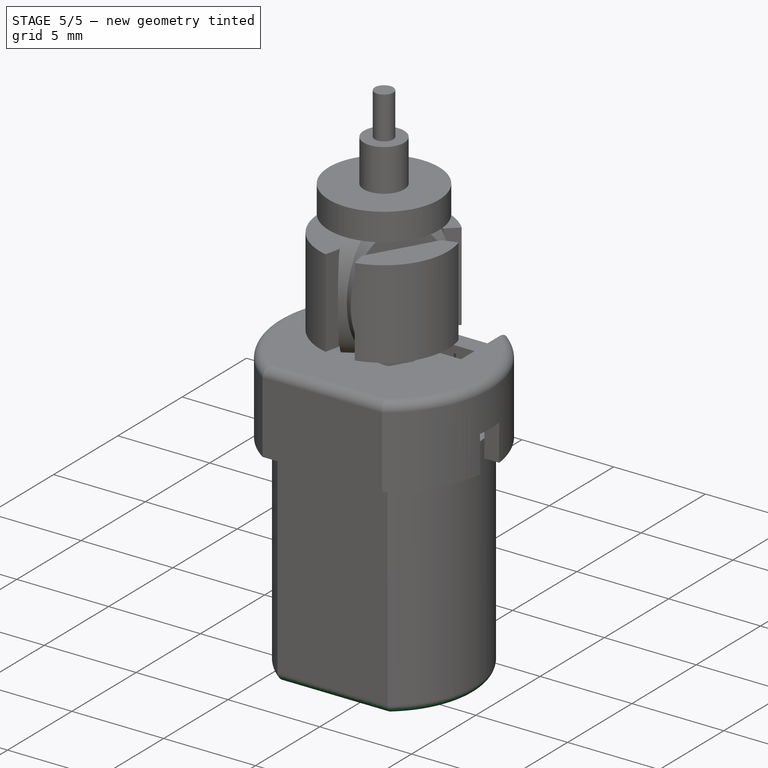
[diagram: stage 5 of 5 — iso view after this stage's code; geometry added in this stage tinted green]
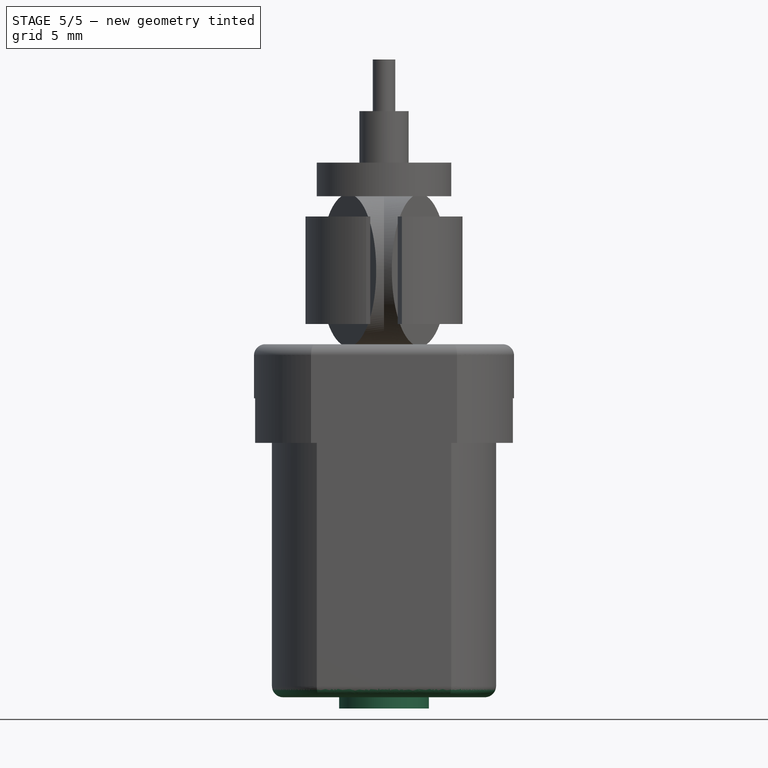
[diagram: stage 5 of 5 — front view after this stage's code; geometry added in this stage tinted green]
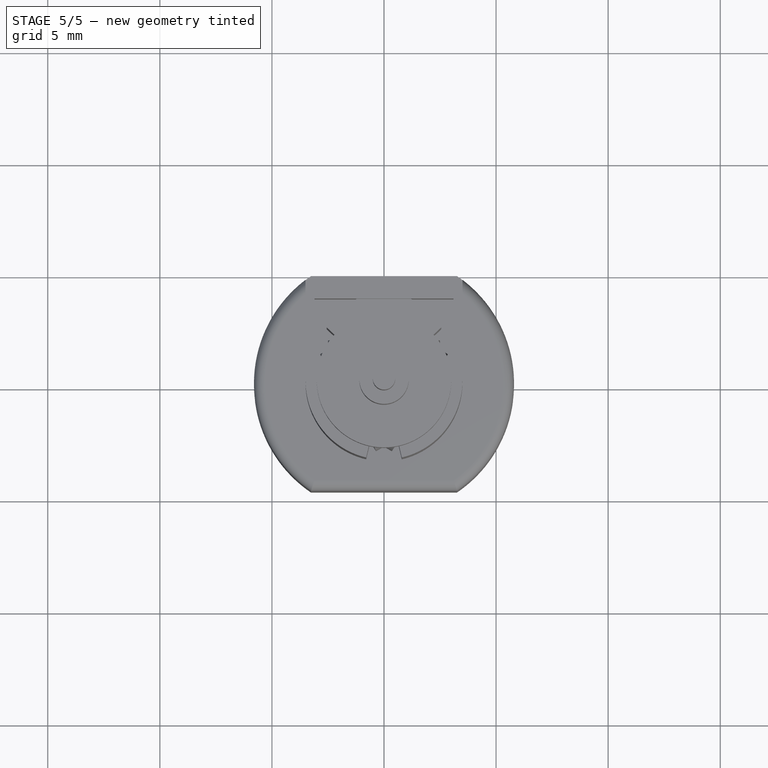
[diagram: stage 5 of 5 — top view after this stage's code; geometry added in this stage tinted green]
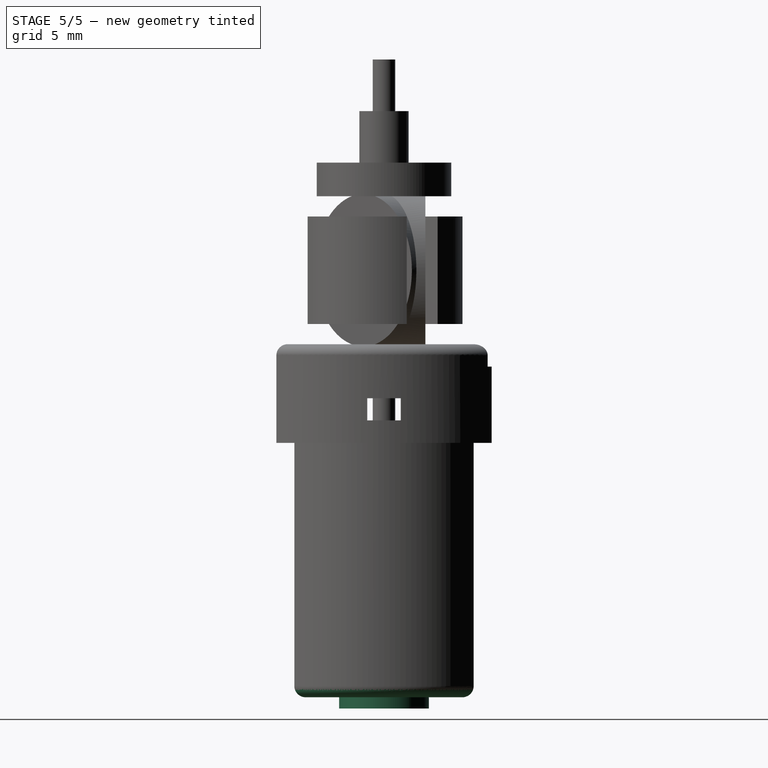
[diagram: stage 5 of 5 — right view after this stage's code; geometry added in this stage tinted green]
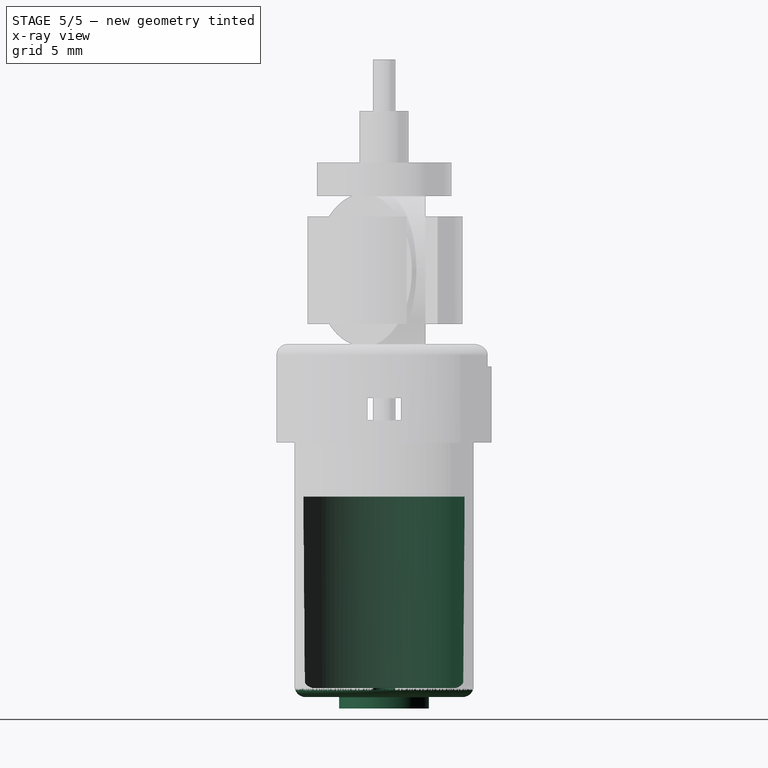
[diagram: stage 5 of 5 — x-ray composite at the right view; earlier geometry ghosted, this stage's added geometry solid]
FEATURE [Sketcher::SketchObject] Sketch001
  ExternalGeometry = -> [Mirrored]
  MapMode = 5
  Placement = pos=(0,0,-10.95) rot=(1,0,0;3.14159rad)
  Support = -> [Mirrored]
  sketch-geometry (4):
    g0: ArcOfCircle CenterX=0 CenterY=0 CenterZ=0 NormalX=0 NormalY=0 NormalZ=1 AngleXU=0 Radius=5 StartAngle=2.2143 EndAngle=4.06889
    g1: ArcOfCircle CenterX=0 CenterY=0 CenterZ=0 NormalX=0 NormalY=0 NormalZ=1 AngleXU=0 Radius=5 StartAngle=5.35589 EndAngle=7.21048
    g2: LineSegment StartX=3 StartY=4 StartZ=0 EndX=-3 EndY=4 EndZ=0
    g3: LineSegment StartX=-3 StartY=-4 StartZ=0 EndX=3 EndY=-4 EndZ=0
  constraints (10):
    c: Coincident(g0,g-1)
    c: Coincident(g1,g0)
    c: Coincident(g0,g-3)
    c: Coincident(g1,g-4)
    c: Coincident(g2,g1)
    c: Coincident(g2,g0)
    c: Horizontal(g2)
    c: Coincident(g3,g0)
    c: Coincident(g3,g1)
    c: Horizontal(g3)
FEATURE [PartDesign::Pad] Pad001
  BaseFeature = -> Mirrored
  Length = 0.4
  Length2 = 100
  Profile = -> Sketch001
  Type = 0
FEATURE [PartDesign::Fillet] Fillet
  Base = -> Pad001 [Edge37,Edge35,Edge45,Edge43]
  BaseFeature = -> Pad001
  Radius = 0.5
  SupportTransform = true
FEATURE [PartDesign::Fillet] Fillet001
  Base = -> Fillet [Face26]
  BaseFeature = -> Fillet
  Radius = 0.5
  SupportTransform = true
FEATURE [Sketcher::SketchObject] Sketch002
  MapMode = 5
  Placement = pos=(0,0,-11.35) rot=(1,0,0;3.14159rad)
  Support = -> [Fillet001]
  sketch-geometry (1):
    g0: Circle CenterX=0 CenterY=0 CenterZ=0 NormalX=0 NormalY=0 NormalZ=1 AngleXU=0 Radius=2
  constraints (2):
    c: Coincident(g0,g-1)
    c: Radius(g0) = 2
FEATURE [PartDesign::Pad] Pad002
  BaseFeature = -> Fillet001
  Length = 0.5
  Length2 = 100
  Profile = -> Sketch002
  Type = 0
FEATURE [Sketcher::SketchObject] Sketch003
  MapMode = 5
  Placement = pos=(0,0,-11.85) rot=(1,0,0;3.14159rad)
  Support = -> [Pad002]
  expr: Constraints[4] = 5.5 / 2 + 0.5
  sketch-geometry (2):
    g0: Circle CenterX=0 CenterY=0 CenterZ=0 NormalX=0 NormalY=0 NormalZ=1 AngleXU=0 Radius=0.5
    g1: Circle CenterX=3.25 CenterY=0 CenterZ=0 NormalX=0 NormalY=0 NormalZ=1 AngleXU=0 Radius=0.5
  constraints (5):
    c: Coincident(g0,g-1)
    c: Radius(g0) = 0.5
    c: PointOnObject(g1,g-1)
    c: Radius(g1) = 0.5
    c: DistanceX(g1) = 3.25
FEATURE [PartDesign::Pocket] Pocket
  BaseFeature = -> Pad002
  Length = 5
  Length2 = 100
  Profile = -> Sketch003
  Type = 1
FEATURE [PartDesign::Mirrored] Mirrored001
  BaseFeature = -> Pocket
  MirrorPlane = -> Sketch003 [V_Axis]
  Originals = -> [Pocket]
FEATURE [Sketcher::SketchObject] Sketch004
  ExternalGeometry = -> [Mirrored001]
  MapMode = 5
  Placement = pos=(0,0,-10.95) rot=(0,0,1;0rad)
  Support = -> [Mirrored001]
  sketch-geometry (4):
    g0: ArcOfCircle CenterX=0 CenterY=0 CenterZ=0 NormalX=0 NormalY=0 NormalZ=1 AngleXU=0 Radius=4.6 StartAngle=5.38434 EndAngle=7.18203
    g1: LineSegment StartX=2.86356 StartY=-3.6 StartZ=0 EndX=1.86356 EndY=-3.6 EndZ=0
    g2: LineSegment StartX=2.86356 StartY=3.6 StartZ=0 EndX=1.86356 EndY=3.6 EndZ=0
    g3: ArcOfCircle CenterX=-1 CenterY=-1.08128e-11 CenterZ=0 NormalX=0 NormalY=0 NormalZ=1 AngleXU=0 Radius=4.6 StartAngle=5.38434 EndAngle=7.18203
  constraints (12):
    c: Coincident(g0,g-1)
    c: Coincident(g0,g-3)
    c: Coincident(g1,g0)
    c: PointOnObject(g1,g-4)
    c: Horizontal(g1)
    c: Coincident(g2,g0)
    c: Horizontal(g2)
    c: Coincident(g3,g2)
    c: Coincident(g3,g1)
    c: Equal(g0,g3)
    c: Distance(g1) = 1
    c: Equal(g2,g1)
FEATURE [PartDesign::Pad] Pad003
  BaseFeature = -> Mirrored001
  Length = 10
  Length2 = 100
  Offset = -2.4
  Profile = -> Sketch004
  Type = 3
  UpToFace = -> Mirrored001 [Face4]
FEATURE [PartDesign::Mirrored] Mirrored002
  BaseFeature = -> Pad003
  MirrorPlane = -> Sketch004 [V_Axis]
  Originals = -> [Pad003]
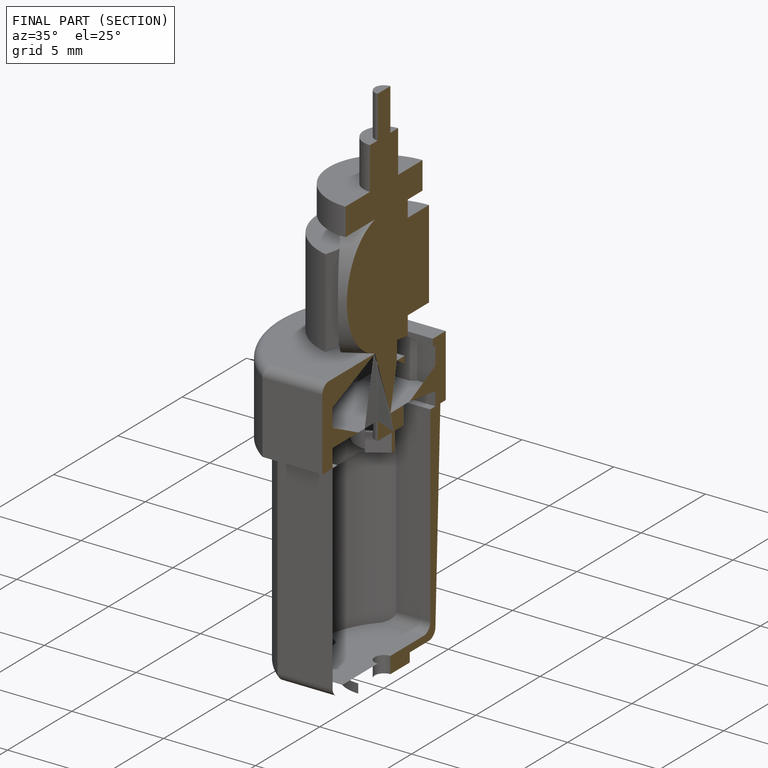
[diagram: finished part — half-section view (interior)]
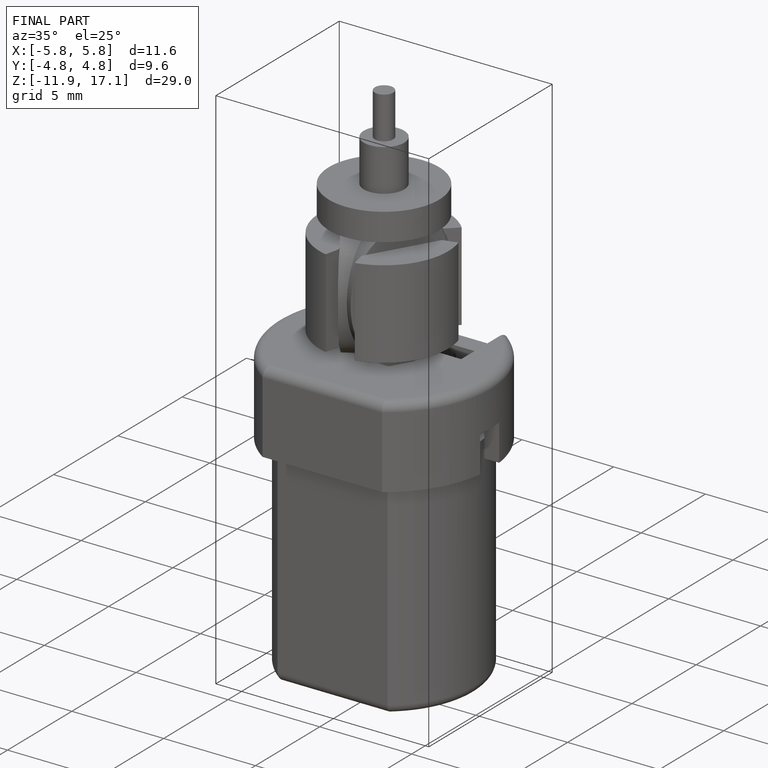
[diagram: finished part — iso view with bounding-box wireframe]
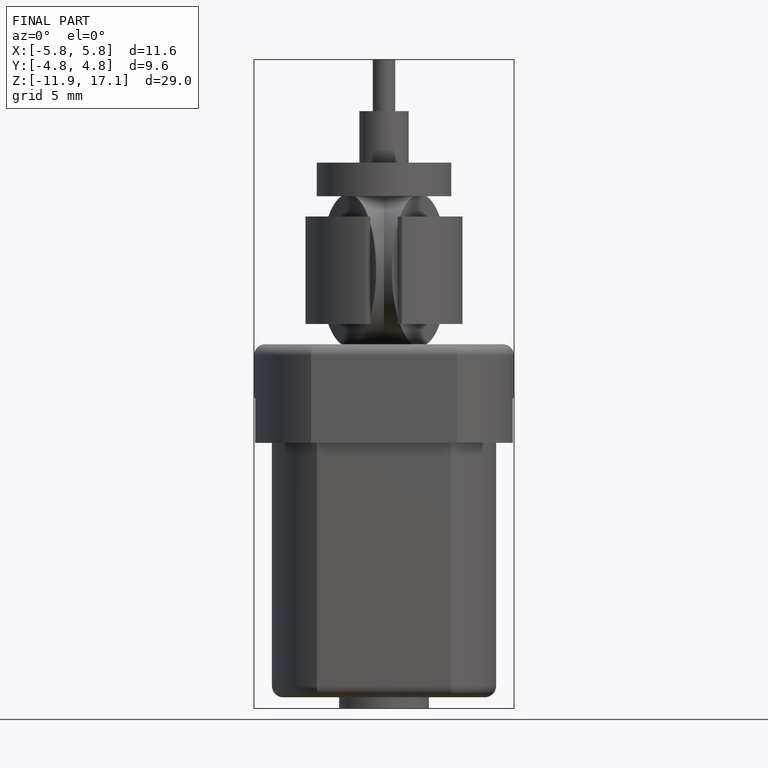
[diagram: finished part — front view with bounding-box wireframe]
